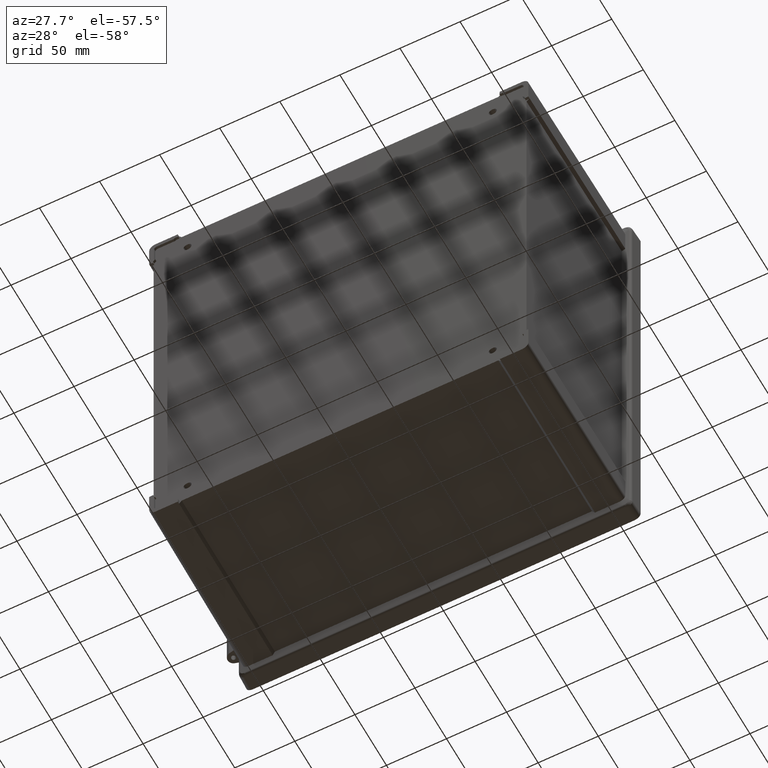
[diagram: clean part render]
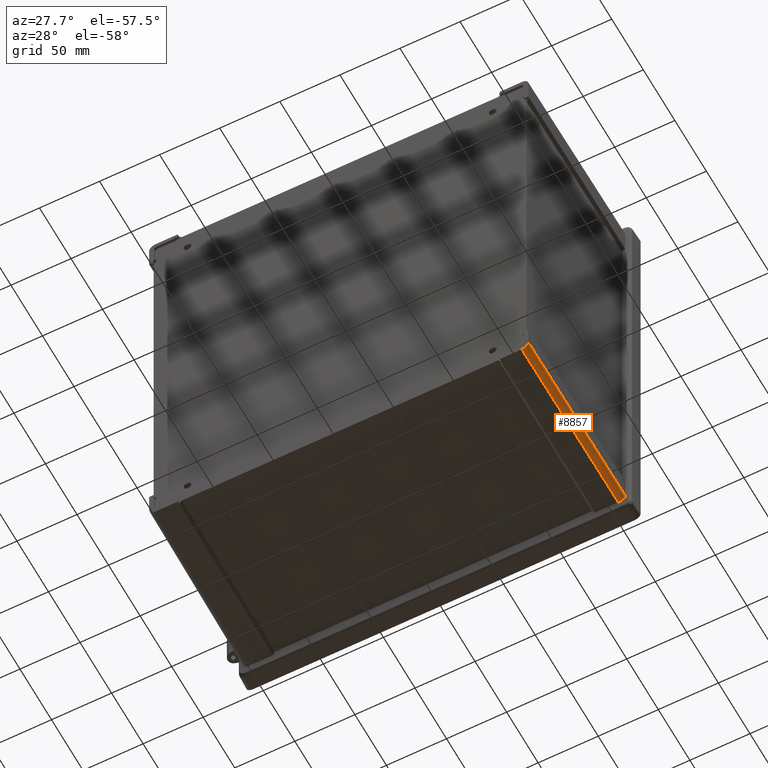
[diagram: same view with one face highlighted and labeled with its STEP entity id]
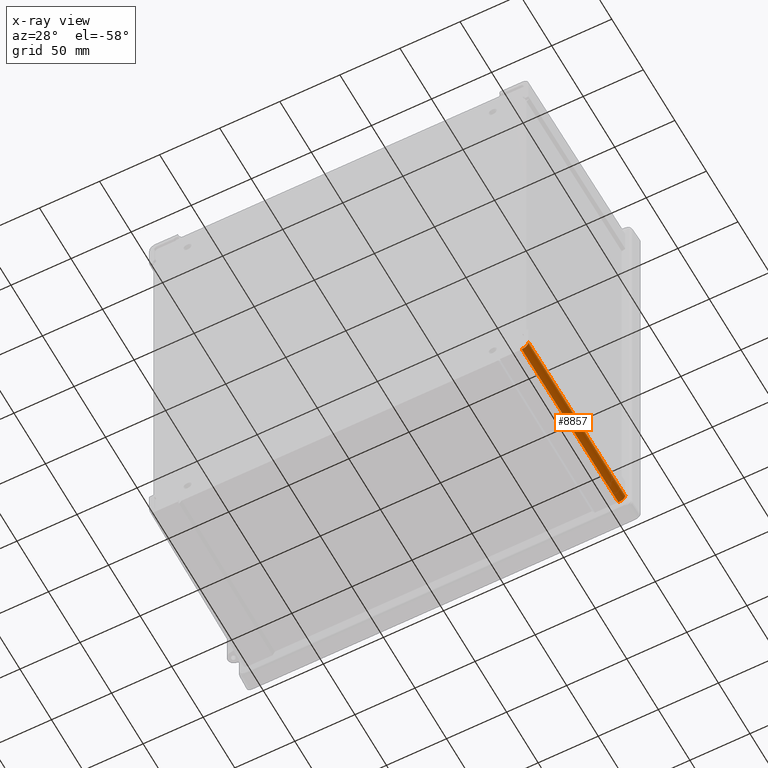
[diagram: x-ray of the same camera — body ghosted, the highlighted face saturated]
A machine part, auxiliary view. The second image highlights one B-rep face of the part: STEP entity #8857.
The next image is the same camera in x-ray: the body ghosted, the highlighted face saturated — about 0% of this face is hidden behind the body in this view.
In plain terms, the highlighted cylindrical surface (edge-blend (fillet) strip) has radius 5.5 mm, axis along (0.0087, 0.9999, -0.0087).
Its self-contained STEP definition (entity closure, byte-faithful):
#36 = EDGE_CURVE ( 'NONE', #10338, #12599, #18992, .T. ) ;
#600 = DIRECTION ( 'NONE',  ( 0.0000000000000000000, 0.008726535498373816700, 0.9999619230641713100 ) ) ;
#752 = CARTESIAN_POINT ( 'NONE',  ( 155.5031956359200100, -15.31309839919583000, -184.2673313299516500 ) ) ;
#885 = CARTESIAN_POINT ( 'NONE',  ( 157.5775907127493800, -15.18789682962433900, -182.9102952472640600 ) ) ;
#1118 = VERTEX_POINT ( 'NONE', #3966 ) ;
#1285 = CARTESIAN_POINT ( 'NONE',  ( 158.9837697056862000, -14.97783103405183200, -180.4192808448449900 ) ) ;
#2272 = EDGE_CURVE ( 'NONE', #10338, #10484, #17691, .T. ) ;
#2463 = ORIENTED_EDGE ( 'NONE', *, *, #2272, .F. ) ;
#2473 = CARTESIAN_POINT ( 'NONE',  ( 158.6508786715900800, -15.04858920767005500, -181.3014004689677000 ) ) ;
#3062 = CYLINDRICAL_SURFACE ( 'NONE', #10760, 5.499999999999988500 ) ;
#3167 = ORIENTED_EDGE ( 'NONE', *, *, #36, .T. ) ;
#3324 = VECTOR ( 'NONE', #8727, 1000.000000000000100 ) ;
#3779 = CARTESIAN_POINT ( 'NONE',  ( 153.5991877945093900, -15.39005838567740300, -184.5989783713621600 ) ) ;
#3888 = CARTESIAN_POINT ( 'NONE',  ( 156.9556788458040700, -15.23705271869090800, -183.4672004551581500 ) ) ;
#3964 = CARTESIAN_POINT ( 'NONE',  ( 157.1746268972752000, -15.22140897005991900, -183.2901106973168900 ) ) ;
#3966 = CARTESIAN_POINT ( 'NONE',  ( 157.7846253229202200, -166.0000000000000000, -177.7848347460671600 ) ) ;
#4092 = CARTESIAN_POINT ( 'NONE',  ( 156.2608727198767700, -15.27815582478710600, -183.9214729254295800 ) ) ;
#4164 = CARTESIAN_POINT ( 'NONE',  ( 158.2597817486930600, -15.11139321309351400, -182.0388248948049500 ) ) ;
#4679 = CARTESIAN_POINT ( 'NONE',  ( 152.2848347460673000, -166.0000000000000000, -183.2846253229200500 ) ) ;
#4831 = EDGE_LOOP ( 'NONE', ( #20429, #2463, #3167, #9536, #9138 ) ) ;
#5901 = CARTESIAN_POINT ( 'NONE',  ( 157.7846253229202200, -165.9999999999999700, -181.0065882853493200 ) ) ;
#5921 = LINE ( 'NONE', #14236, #15015 ) ;
#7400 = CARTESIAN_POINT ( 'NONE',  ( 153.5991877945093900, -15.39005838567740300, -184.5989783713621600 ) ) ;
#8337 = FACE_OUTER_BOUND ( 'NONE', #4831, .T. ) ;
#8727 = DIRECTION ( 'NONE',  ( -0.008726203243944186100, -0.9999238504775704900, 0.008726203243944238200 ) ) ;
#8857 = ADVANCED_FACE ( 'NONE', ( #8337 ), #3062, .T. ) ;
#8924 = CARTESIAN_POINT ( 'NONE',  ( 155.5065882853494700, -165.9999999999999700, -183.2846253229201100 ) ) ;
#9138 = ORIENTED_EDGE ( 'NONE', *, *, #15836, .F. ) ;
#9536 = ORIENTED_EDGE ( 'NONE', *, *, #20393, .F. ) ;
#10303 = CARTESIAN_POINT ( 'NONE',  ( 158.7495619430684100, -15.02761343079029500, -181.0399021363977900 ) ) ;
#10338 = VERTEX_POINT ( 'NONE', #3779 ) ;
#10484 = VERTEX_POINT ( 'NONE', #4679 ) ;
#10507 = CARTESIAN_POINT ( 'NONE',  ( 154.7052458730442200, -15.34526532290956300, -184.5158096590259300 ) ) ;
#10760 = AXIS2_PLACEMENT_3D ( 'NONE', #11632, #16409, #600 ) ;
#11112 = VERTEX_POINT ( 'NONE', #13888 ) ;
#11316 = CARTESIAN_POINT ( 'NONE',  ( 158.7495619430684100, -15.02761343079029500, -181.0399021363977900 ) ) ;
#11632 = CARTESIAN_POINT ( 'NONE',  ( 153.6122904087300800, -13.84065156372465000, -179.1122904087299000 ) ) ;
#12078 = CARTESIAN_POINT ( 'NONE',  ( 154.1592117335405000, -15.36481871897117700, -184.5991986345965800 ) ) ;
#12479 = CARTESIAN_POINT ( 'NONE',  ( 159.1027966142822800, -14.95253108361444200, -179.1030060374292000 ) ) ;
#12599 = VERTEX_POINT ( 'NONE', #11316 ) ;
#13682 = CARTESIAN_POINT ( 'NONE',  ( 158.5331094001142800, -15.06978734817023700, -181.5534260211698300 ) ) ;
#13818 = CARTESIAN_POINT ( 'NONE',  ( 157.7634416106004700, -15.16993894522100600, -182.7065743628075200 ) ) ;
#13888 = CARTESIAN_POINT ( 'NONE',  ( 159.1027966142822800, -14.95253108361444200, -179.1030060374292000 ) ) ;
#14236 = CARTESIAN_POINT ( 'NONE',  ( 159.1120809855829900, -13.88864750896570800, -179.1122904087299000 ) ) ;
#15015 = VECTOR ( 'NONE', #18938, 1000.000000000000100 ) ;
#15368 = CARTESIAN_POINT ( 'NONE',  ( 156.4992743030011900, -15.26536916504562700, -183.7822311131358500 ) ) ;
#15557 = CARTESIAN_POINT ( 'NONE',  ( 152.2848347460673000, -166.0000000000000000, -183.2846253229200500 ) ) ;
#15836 = EDGE_CURVE ( 'NONE', #1118, #11112, #5921, .T. ) ;
#16409 = DIRECTION ( 'NONE',  ( 0.008726203243944187900, 0.9999238504775704900, -0.008726203243944236400 ) ) ;
#16582 =( BOUNDED_CURVE ( )  B_SPLINE_CURVE ( 3, ( #15557, #8924, #5901, #17026 ),
 .UNSPECIFIED., .F., .F. ) 
 B_SPLINE_CURVE_WITH_KNOTS ( ( 4, 4 ),
 ( 5.497825219993077700, 7.068545394366094700 ),
 .UNSPECIFIED. ) 
 CURVE ( )  GEOMETRIC_REPRESENTATION_ITEM ( )  RATIONAL_B_SPLINE_CURVE ( ( 1.000000000000000000, 0.8047558030806115600, 0.8047558030806115600, 1.000000000000000000 ) ) 
 REPRESENTATION_ITEM ( '' )  );
#17026 = CARTESIAN_POINT ( 'NONE',  ( 157.7846253229202200, -166.0000000000000000, -177.7848347460671600 ) ) ;
#17334 = CARTESIAN_POINT ( 'NONE',  ( 159.1027966142822500, -14.95253108361444200, -179.7666191054416100 ) ) ;
#17691 = LINE ( 'NONE', #18367, #3324 ) ;
#18263 = EDGE_CURVE ( 'NONE', #10484, #1118, #16582, .T. ) ;
#18367 = CARTESIAN_POINT ( 'NONE',  ( 153.6121152714970300, -13.90871624808549700, -184.6119058483498100 ) ) ;
#18521 = CARTESIAN_POINT ( 'NONE',  ( 158.1040980769021800, -15.13176092523014300, -182.2716868061590400 ) ) ;
#18648 = CARTESIAN_POINT ( 'NONE',  ( 155.7638948133118800, -15.30198133024786200, -184.1637182927871700 ) ) ;
#18931 = CARTESIAN_POINT ( 'NONE',  ( 158.7495619430684100, -15.02761343079029500, -181.0399021363977900 ) ) ;
#18938 = DIRECTION ( 'NONE',  ( 0.008726203243944187900, 0.9999238504775704900, -0.008726203243944236400 ) ) ;
#18992 = B_SPLINE_CURVE_WITH_KNOTS ( 'NONE', 3,
 ( #7400, #12078, #10507, #752, #18648, #4092, #15368, #3888, #3964, #885, #13818, #18521, #4164, #13682, #2473, #10303 ),
 .UNSPECIFIED., .F., .F.,
 ( 4, 2, 2, 2, 2, 2, 2, 4 ),
 ( 0.0000000000000000000, 0.001657878926426454900, 0.002486818389639642600, 0.003315757852852830800, 0.004144697316066019000, 0.004973636779279207200, 0.005802576242492396200, 0.006631515705705583500 ),
 .UNSPECIFIED. ) ;
#19813 =( BOUNDED_CURVE ( )  B_SPLINE_CURVE ( 3, ( #12479, #17334, #1285, #18931 ),
 .UNSPECIFIED., .F., .T. ) 
 B_SPLINE_CURVE_WITH_KNOTS ( ( 4, 4 ),
 ( 6.243844256862554500, 6.603843504648568600 ),
 .UNSPECIFIED. ) 
 CURVE ( )  GEOMETRIC_REPRESENTATION_ITEM ( )  RATIONAL_B_SPLINE_CURVE ( ( 1.000000000000000000, 0.9892291734148841400, 0.9892291734148841400, 1.000000000000000000 ) ) 
 REPRESENTATION_ITEM ( '' )  );
#20393 = EDGE_CURVE ( 'NONE', #11112, #12599, #19813, .T. ) ;
#20429 = ORIENTED_EDGE ( 'NONE', *, *, #18263, .F. ) ;